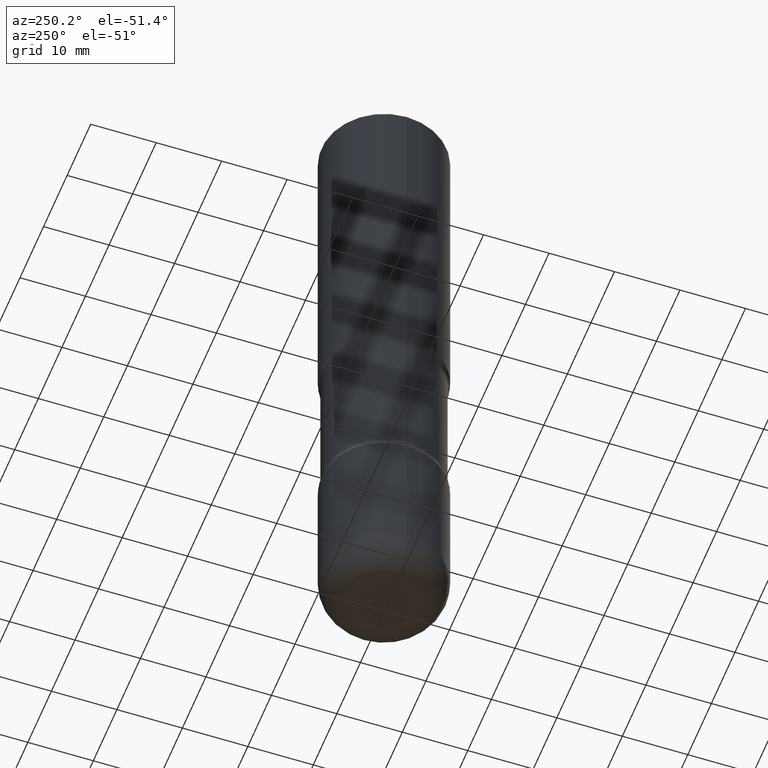
[diagram: clean part render]
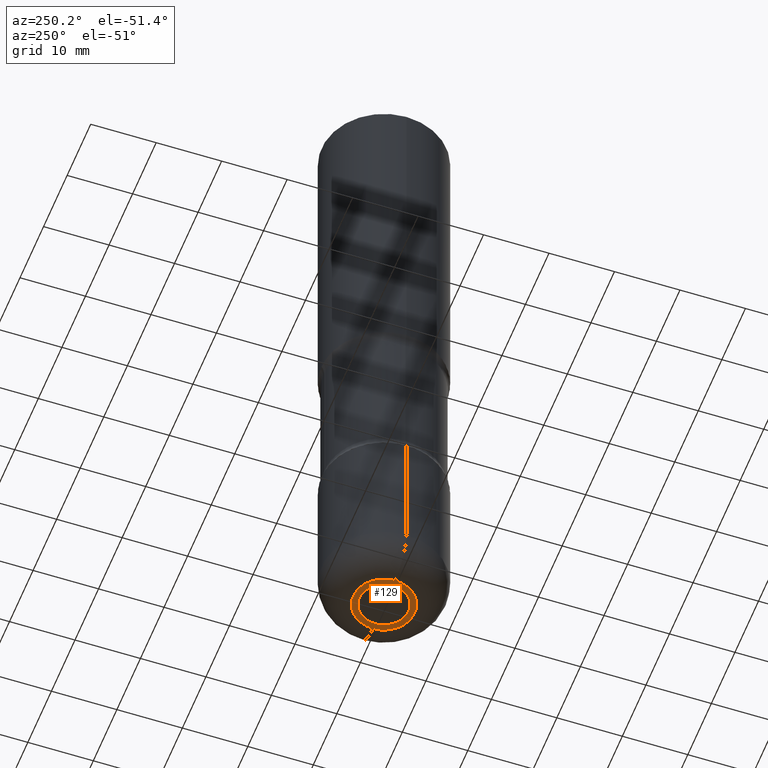
[diagram: same view with one face highlighted and labeled with its STEP entity id]
A machine part, auxiliary view. The second image highlights one B-rep face of the part: STEP entity #129.
In plain terms, the highlighted planar face has unit normal (-0, 0, 1).
Its self-contained STEP definition (entity closure, byte-faithful):
#22 = ORIENTED_EDGE ( 'NONE', *, *, #87, .T. ) ;
#27 = EDGE_LOOP ( 'NONE', ( #113, #22 ) ) ;
#44 = ORIENTED_EDGE ( 'NONE', *, *, #770, .F. ) ;
#57 = DIRECTION ( 'NONE',  ( 1.000000000000000000, -6.982962677686265133E-15, 0.000000000000000000 ) ) ;
#74 = CARTESIAN_POINT ( 'NONE',  ( -0.1850000000000001366, -1.164471496805420332E-14, -4.000000000000000888 ) ) ;
#87 = EDGE_CURVE ( 'NONE', #464, #749, #198, .T. ) ;
#92 = DIRECTION ( 'NONE',  ( 1.000000000000000000, -6.982962677686270655E-15, 0.000000000000000000 ) ) ;
#113 = ORIENTED_EDGE ( 'NONE', *, *, #764, .T. ) ;
#129 = ADVANCED_FACE ( 'NONE', ( #265, #392 ), #641, .F. ) ;
#139 = EDGE_LOOP ( 'NONE', ( #539, #44 ) ) ;
#143 = DIRECTION ( 'NONE',  ( -2.445468806185136597E-29, 3.491481338843145583E-15, 1.000000000000000000 ) ) ;
#155 = VERTEX_POINT ( 'NONE', #74 ) ;
#162 = EDGE_CURVE ( 'NONE', #794, #155, #319, .T. ) ;
#198 = CIRCLE ( 'NONE', #296, 0.1475000000000001033 ) ;
#204 = CARTESIAN_POINT ( 'NONE',  ( -7.161073312030320646E-28, -1.305247730850476631E-13, -4.000000000000000000 ) ) ;
#223 = DIRECTION ( 'NONE',  ( -2.445468806185136597E-29, 3.491481338843145583E-15, 1.000000000000000000 ) ) ;
#230 = CIRCLE ( 'NONE', #343, 0.1850000000000001366 ) ;
#243 = CARTESIAN_POINT ( 'NONE',  ( -0.1474999999999999645, -1.293593836041385578E-14, -3.999999999999999556 ) ) ;
#246 = DIRECTION ( 'NONE',  ( 1.000000000000000000, -6.982962677686270655E-15, 0.000000000000000000 ) ) ;
#255 = CIRCLE ( 'NONE', #590, 0.1475000000000001033 ) ;
#265 = FACE_OUTER_BOUND ( 'NONE', #139, .T. ) ;
#296 = AXIS2_PLACEMENT_3D ( 'NONE', #345, #143, #398 ) ;
#319 = CIRCLE ( 'NONE', #478, 0.1850000000000001366 ) ;
#333 = CARTESIAN_POINT ( 'NONE',  ( 9.781875224740547508E-29, -1.396592535537258391E-14, -4.000000000000000888 ) ) ;
#343 = AXIS2_PLACEMENT_3D ( 'NONE', #573, #806, #246 ) ;
#345 = CARTESIAN_POINT ( 'NONE',  ( 9.781875224740545266E-29, -1.396592535537258075E-14, -3.999999999999999556 ) ) ;
#380 = CARTESIAN_POINT ( 'NONE',  ( 9.781875224740545266E-29, -1.396592535537258075E-14, -3.999999999999999556 ) ) ;
#392 = FACE_BOUND ( 'NONE', #27, .T. ) ;
#398 = DIRECTION ( 'NONE',  ( 1.000000000000000000, -6.982962677686265133E-15, 0.000000000000000000 ) ) ;
#464 = VERTEX_POINT ( 'NONE', #657 ) ;
#478 = AXIS2_PLACEMENT_3D ( 'NONE', #333, #223, #92 ) ;
#524 = DIRECTION ( 'NONE',  ( 1.000000000000000000, -6.982962677686265922E-15, 4.876176775795935793E-29 ) ) ;
#539 = ORIENTED_EDGE ( 'NONE', *, *, #162, .F. ) ;
#573 = CARTESIAN_POINT ( 'NONE',  ( 9.781875224740547508E-29, -1.396592535537258391E-14, -4.000000000000000888 ) ) ;
#590 = AXIS2_PLACEMENT_3D ( 'NONE', #380, #628, #57 ) ;
#628 = DIRECTION ( 'NONE',  ( -2.445468806185136597E-29, 3.491481338843145583E-15, 1.000000000000000000 ) ) ;
#641 = PLANE ( 'NONE',  #650 ) ;
#650 = AXIS2_PLACEMENT_3D ( 'NONE', #204, #696, #524 ) ;
#657 = CARTESIAN_POINT ( 'NONE',  ( 0.1474999999999999645, -1.497784881004388002E-14, -3.999999999999999556 ) ) ;
#696 = DIRECTION ( 'NONE',  ( -2.438088387897960049E-29, 3.491481338843145188E-15, 1.000000000000000000 ) ) ;
#749 = VERTEX_POINT ( 'NONE', #243 ) ;
#764 = EDGE_CURVE ( 'NONE', #749, #464, #255, .T. ) ;
#770 = EDGE_CURVE ( 'NONE', #155, #794, #230, .T. ) ;
#790 = CARTESIAN_POINT ( 'NONE',  ( 0.1850000000000001366, -1.525777345074454388E-14, -4.000000000000000888 ) ) ;
#794 = VERTEX_POINT ( 'NONE', #790 ) ;
#806 = DIRECTION ( 'NONE',  ( -2.445468806185136597E-29, 3.491481338843145583E-15, 1.000000000000000000 ) ) ;